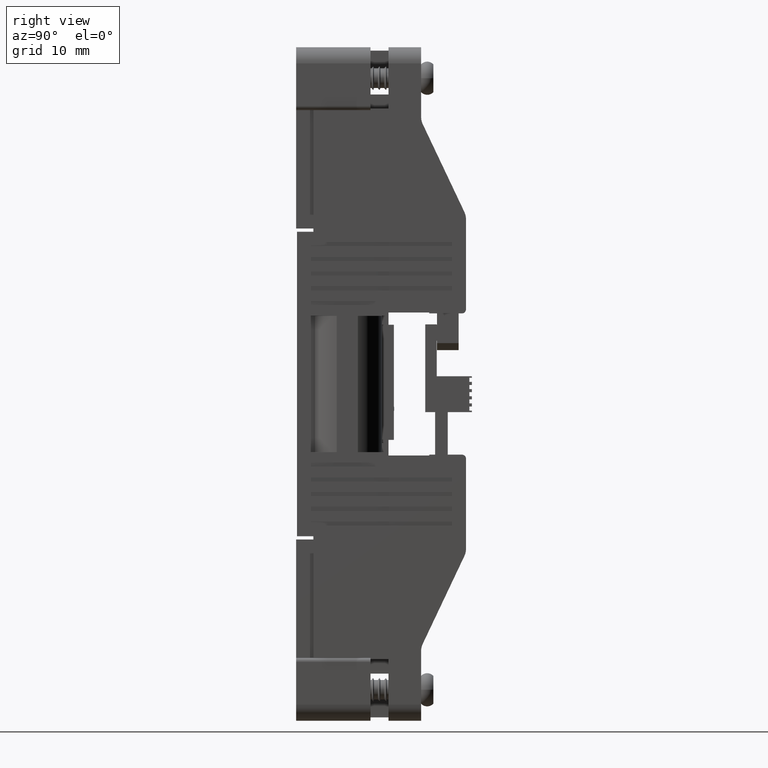
[diagram: clean part render]
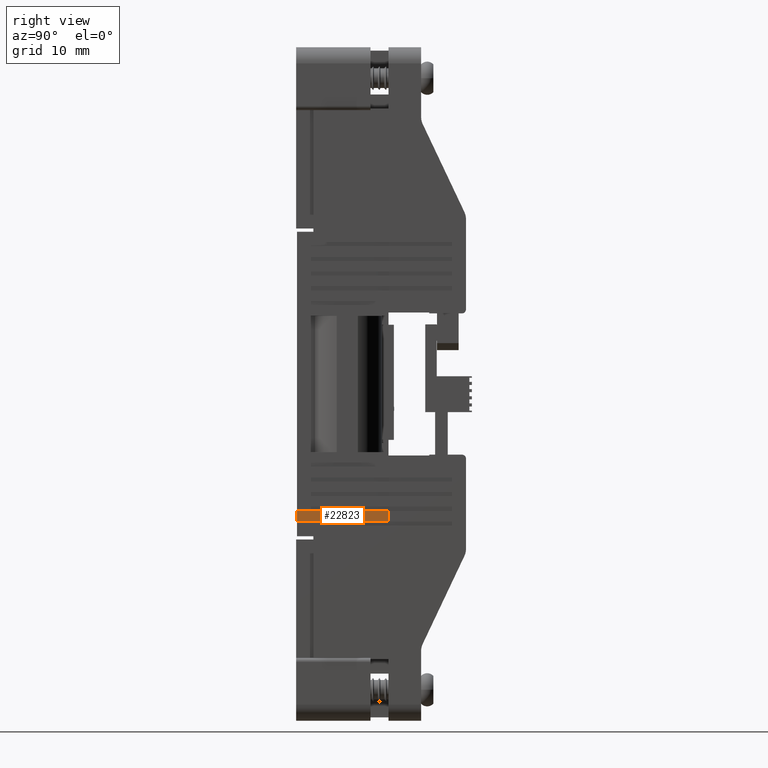
[diagram: same view with one face highlighted and labeled with its STEP entity id]
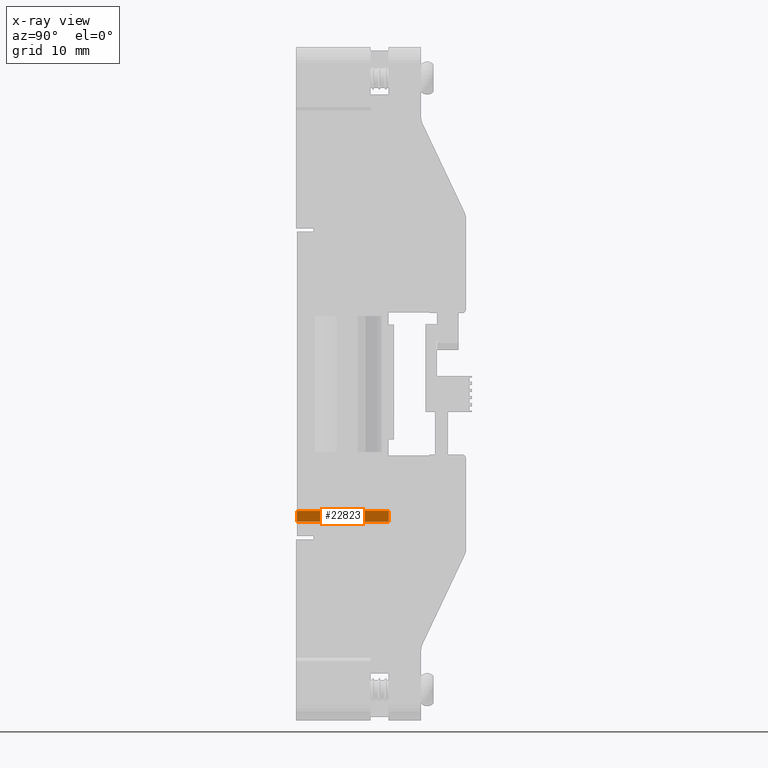
[diagram: x-ray of the same camera — body ghosted, the highlighted face saturated]
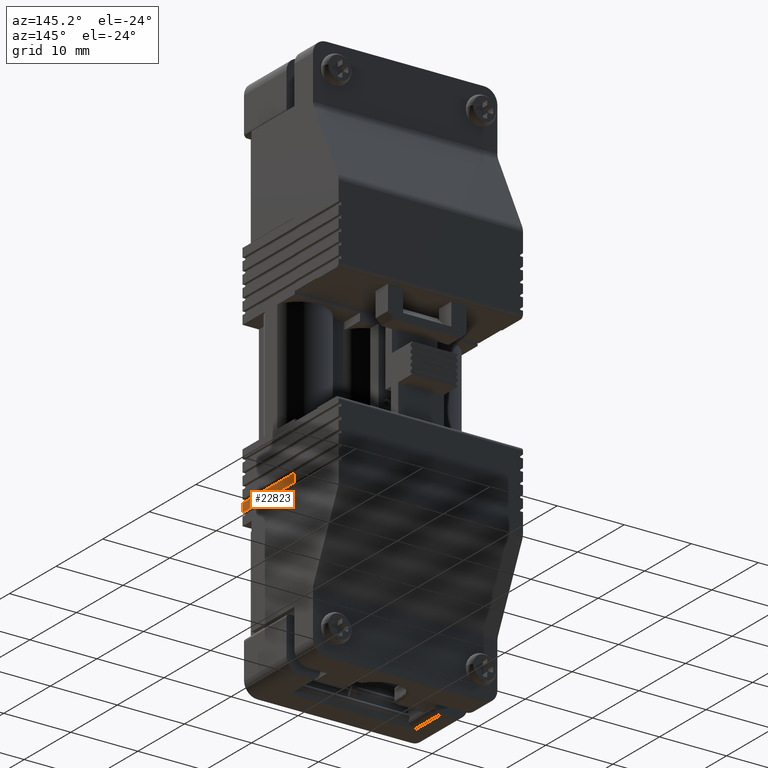
[diagram: same view with one face highlighted and labeled with its STEP entity id]
A machine part, right view. The second image highlights one B-rep face of the part: STEP entity #22823.
The next image is the same camera in x-ray: the body ghosted, the highlighted face saturated — about 0% of this face is hidden behind the body in this view.
A second angle (auxiliary view) of the same face is appended — the face is thin or edge-on in the first view.
In plain terms, the highlighted planar face has unit normal (1, 0, -0).
Its self-contained STEP definition (entity closure, byte-faithful):
#866 = ORIENTED_EDGE ( 'NONE', *, *, #3722, .T. ) ;
#873 = ORIENTED_EDGE ( 'NONE', *, *, #3738, .T. ) ;
#894 = ORIENTED_EDGE ( 'NONE', *, *, #30479, .T. ) ;
#910 = ORIENTED_EDGE ( 'NONE', *, *, #3774, .T. ) ;
#3722 = EDGE_CURVE ( 'NONE', #16527, #21942, #20350, .T. ) ;
#3738 = EDGE_CURVE ( 'NONE', #21951, #16486, #20368, .T. ) ;
#3774 = EDGE_CURVE ( 'NONE', #21942, #21951, #19435, .T. ) ;
#3905 = DIRECTION ( 'NONE',  ( 1.262177448353618900E-029, -1.000000000000000000, -3.924995318345909200E-042 ) ) ;
#3931 = CARTESIAN_POINT ( 'NONE',  ( 27.44707816741946600, -9.999999999999875700, -6.600000000002863100 ) ) ;
#3941 = LINE ( 'NONE', #3931, #13661 ) ;
#7586 = CARTESIAN_POINT ( 'NONE',  ( 27.44707816741918900, 0.0000000000000000000, -6.600000000002863100 ) ) ;
#7653 = CARTESIAN_POINT ( 'NONE',  ( 27.44707816741946600, -11.19999999999991200, -6.600000000005634200 ) ) ;
#9470 = EDGE_LOOP ( 'NONE', ( #910, #873, #894, #866 ) ) ;
#13661 = VECTOR ( 'NONE', #3905, 1000.000000000000000 ) ;
#14938 = AXIS2_PLACEMENT_3D ( 'NONE', #28688, #28675, #28703 ) ;
#16486 = VERTEX_POINT ( 'NONE', #7586 ) ;
#16527 = VERTEX_POINT ( 'NONE', #7653 ) ;
#19435 = LINE ( 'NONE', #19441, #25355 ) ;
#19441 = CARTESIAN_POINT ( 'NONE',  ( 27.44707816741905800, -18.09999999999988400, -7.900000000008548200 ) ) ;
#19444 = DIRECTION ( 'NONE',  ( 4.439982995984160600E-028, 1.000000000000000000, 1.427784227515060900E-015 ) ) ;
#20320 = DIRECTION ( 'NONE',  ( -3.109701669496363800E-013, 0.0000000000000000000, -1.000000000000000000 ) ) ;
#20350 = LINE ( 'NONE', #20351, #25190 ) ;
#20351 = CARTESIAN_POINT ( 'NONE',  ( 27.44707816741805200, -11.19999999999989100, -11.15000000000839400 ) ) ;
#20368 = LINE ( 'NONE', #20402, #25138 ) ;
#20373 = DIRECTION ( 'NONE',  ( 0.0000000000000000000, -0.0000000000000000000, 1.000000000000000000 ) ) ;
#20402 = CARTESIAN_POINT ( 'NONE',  ( 27.44707816741905400, 0.0000000000000000000, 0.2999999999999999900 ) ) ;
#20660 = CARTESIAN_POINT ( 'NONE',  ( 27.44707816741905800, -11.19999999999993200, -7.900000000008539300 ) ) ;
#20662 = CARTESIAN_POINT ( 'NONE',  ( 27.44707816741905400, 5.319818659662208600E-014, -7.900000000008521500 ) ) ;
#21942 = VERTEX_POINT ( 'NONE', #20660 ) ;
#21951 = VERTEX_POINT ( 'NONE', #20662 ) ;
#22823 = ADVANCED_FACE ( 'NONE', ( #28683 ), #28646, .T. ) ;
#25138 = VECTOR ( 'NONE', #20373, 1000.000000000000000 ) ;
#25190 = VECTOR ( 'NONE', #20320, 1000.000000000000000 ) ;
#25355 = VECTOR ( 'NONE', #19444, 1000.000000000000000 ) ;
#28646 = PLANE ( 'NONE',  #14938 ) ;
#28675 = DIRECTION ( 'NONE',  ( 1.000000000000000000, 1.262177448353618900E-029, -3.109701669496363800E-013 ) ) ;
#28683 = FACE_OUTER_BOUND ( 'NONE', #9470, .T. ) ;
#28688 = CARTESIAN_POINT ( 'NONE',  ( 27.44707816741805200, -9.999999999999875700, -11.15000000000839400 ) ) ;
#28703 = DIRECTION ( 'NONE',  ( -3.109701669496363800E-013, 0.0000000000000000000, -1.000000000000000000 ) ) ;
#30479 = EDGE_CURVE ( 'NONE', #16486, #16527, #3941, .T. ) ;